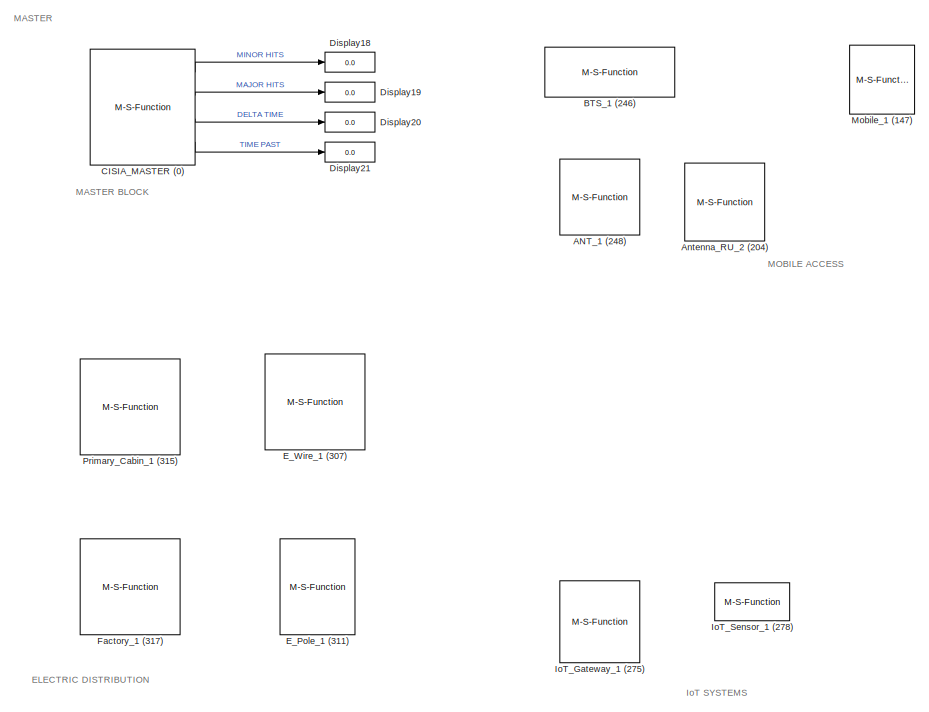
[diagram: root canvas - part 1/5, top left region]
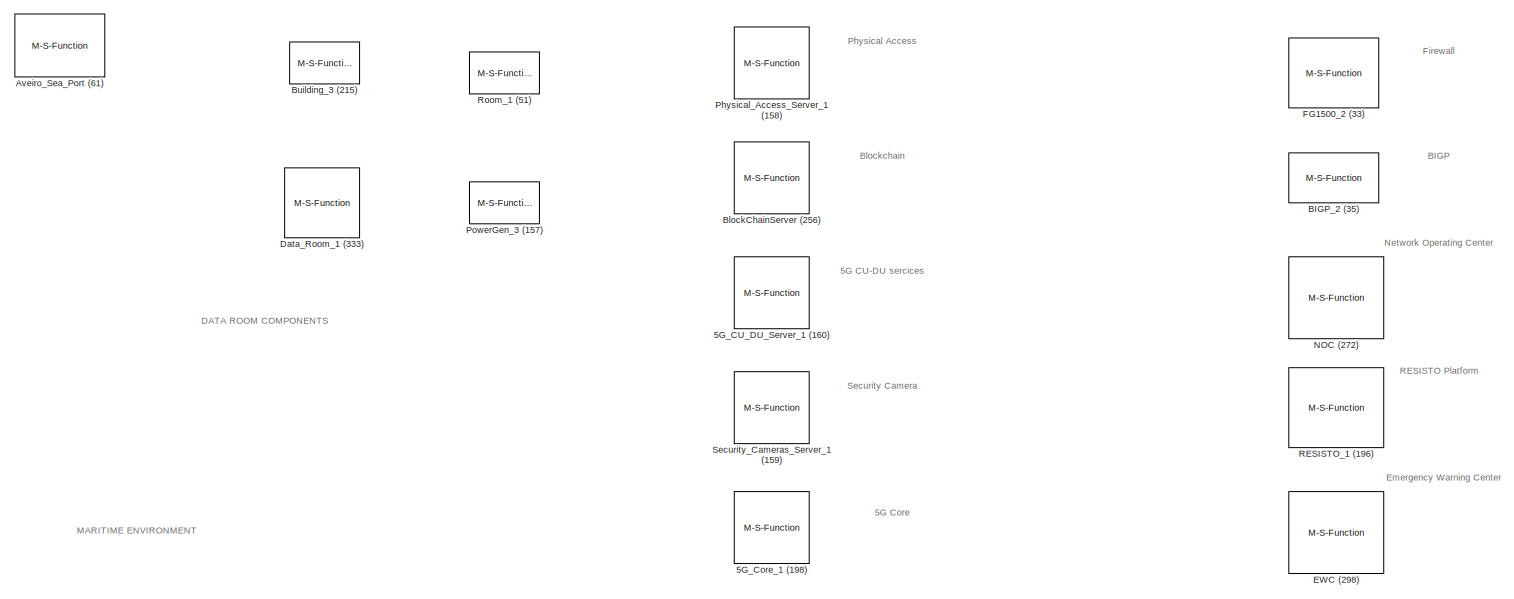
[diagram: root canvas - part 2/5, top right region]
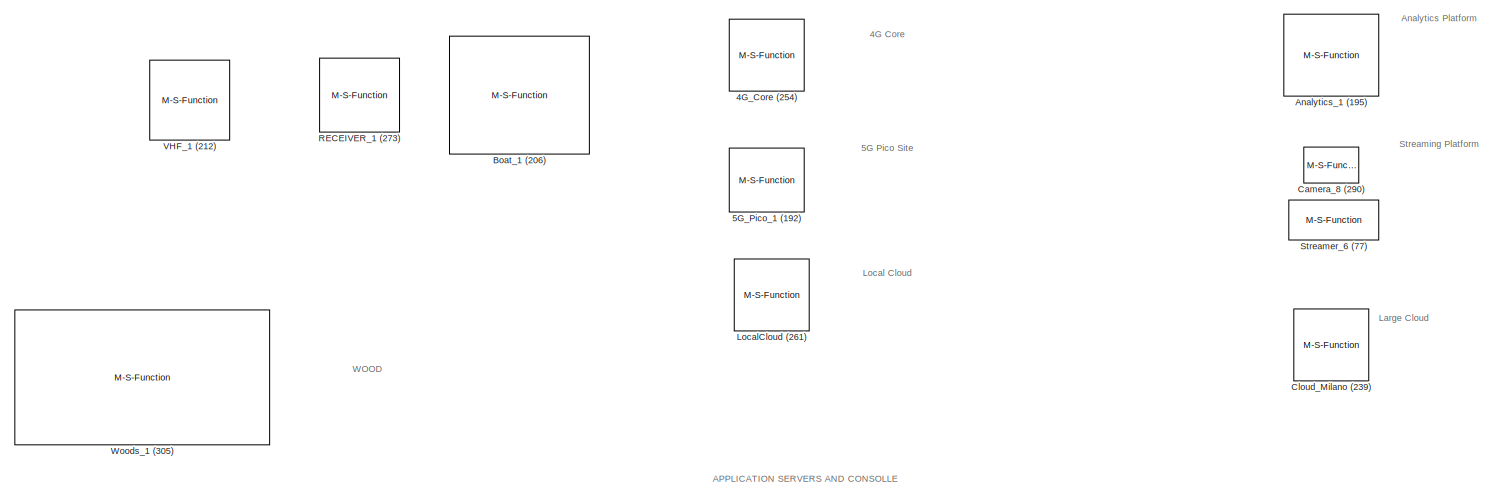
[diagram: root canvas - part 3/5, middle right region]
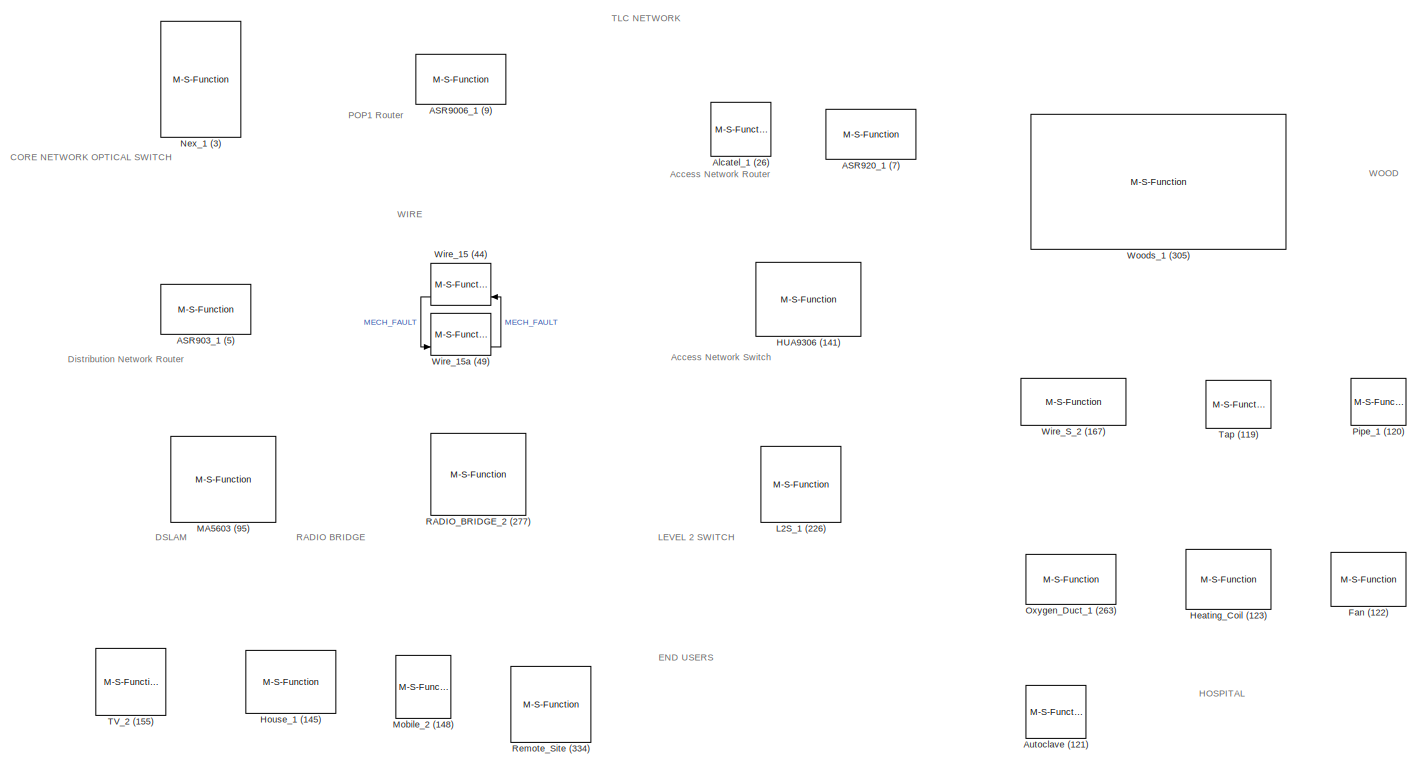
[diagram: root canvas - part 4/5, bottom left region]
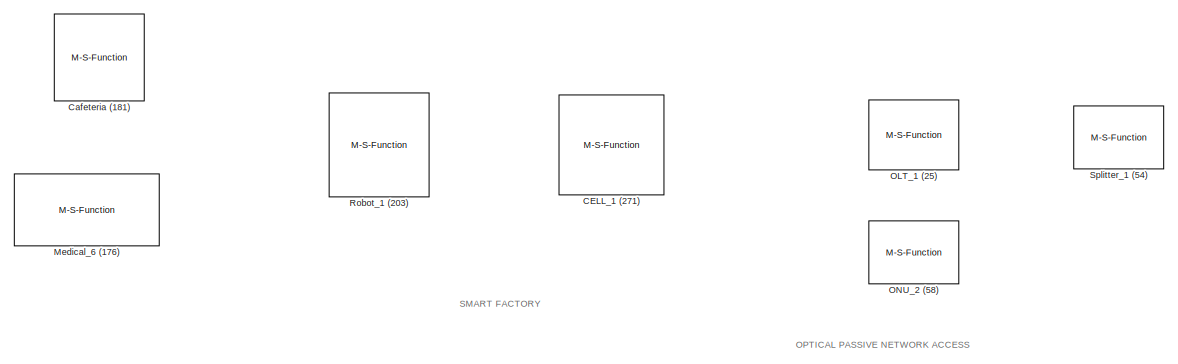
[diagram: root canvas - part 5/5, bottom right region]
MODEL slx_8f8395933482
KIND model
CONFIG AbsTol = auto
CONFIG EnableMultiTasking = off
CONFIG FixedStep = auto
CONFIG MaxStep = auto
CONFIG MinStep = auto
CONFIG RelTol = 1e-3
CONFIG SampleTimeConstraint = Unconstrained
CONFIG SolverName = VariableStepAuto
CONFIG StartTime = 0.0
CONFIG StopTime = 2
BLOCK [M-S-Function] 4G_Core (254)
  FunctionName = cisia_msfun
  Parameters = Parameter1, Parameter2, Parameter3, resources, Parameter10, codeupdate, step_received, step_computed, dynamic_computed, step_sended, id_entity, id_project, id_type, name_type, color
  Ports = [5, 3]
BLOCK [M-S-Function] 5G_CU_DU_Server_1 (160)
  FunctionName = cisia_msfun
  Parameters = Parameter1, Parameter2, Parameter3, resources, Parameter10, codeupdate, step_received, step_computed, dynamic_computed, step_sended, id_entity, id_project, id_type, name_type, color
  Ports = [5, 3]
BLOCK [M-S-Function] 5G_Core_1 (198)
  FunctionName = cisia_msfun
  Parameters = Parameter1, Parameter2, Parameter3, resources, Parameter10, codeupdate, step_received, step_computed, dynamic_computed, step_sended, id_entity, id_project, id_type, name_type, color
  Ports = [5, 3]
BLOCK [M-S-Function] 5G_Pico_1 (192)
  FunctionName = cisia_msfun
  Parameters = Parameter1, Parameter2, Parameter3, resources, Parameter10, codeupdate, step_received, step_computed, dynamic_computed, step_sended, id_entity, id_project, id_type, name_type, color
  Ports = [5, 3]
BLOCK [M-S-Function] ANT_1 (248)
  FunctionName = cisia_msfun
  Parameters = Parameter1, Parameter2, Parameter3, resources, Parameter10, codeupdate, step_received, step_computed, dynamic_computed, step_sended, id_entity, id_project, id_type, name_type, color
  Ports = [4, 3]
BLOCK [M-S-Function] ASR9006_1 (9)
  FunctionName = cisia_msfun
  Parameters = Parameter1, Parameter2, Parameter3, resources, Parameter10, codeupdate, step_received, step_computed, dynamic_computed, step_sended, id_entity, id_project, id_type, name_type, color
  Ports = [5, 4]
BLOCK [M-S-Function] ASR903_1 (5)
  FunctionName = cisia_msfun
  Parameters = Parameter1, Parameter2, Parameter3, resources, Parameter10, codeupdate, step_received, step_computed, dynamic_computed, step_sended, id_entity, id_project, id_type, name_type, color
  Ports = [5, 4]
BLOCK [M-S-Function] ASR920_1 (7)
  FunctionName = cisia_msfun
  NameLocation = top
  Parameters = Parameter1, Parameter2, Parameter3, resources, Parameter10, codeupdate, step_received, step_computed, dynamic_computed, step_sended, id_entity, id_project, id_type, name_type, color
  Ports = [5, 4]
BLOCK [M-S-Function] Alcatel_1 (26)
  FunctionName = cisia_msfun
  Parameters = Parameter1, Parameter2, Parameter3, resources, Parameter10, codeupdate, step_received, step_computed, dynamic_computed, step_sended, id_entity, id_project, id_type, name_type, color
  Ports = [5, 4]
BLOCK [M-S-Function] Analytics_1 (195)
  FunctionName = cisia_msfun
  Parameters = Parameter1, Parameter2, Parameter3, resources, Parameter10, codeupdate, step_received, step_computed, dynamic_computed, step_sended, id_entity, id_project, id_type, name_type, color
  Ports = [4, 1]
BLOCK [M-S-Function] Antenna_RU_2 (204)
  FunctionName = cisia_msfun
  Parameters = Parameter1, Parameter2, Parameter3, resources, Parameter10, codeupdate, step_received, step_computed, dynamic_computed, step_sended, id_entity, id_project, id_type, name_type, color
  Ports = [4, 3]
BLOCK [M-S-Function] Autoclave (121)
  FunctionName = cisia_msfun
  Parameters = Parameter1, Parameter2, Parameter3, resources, Parameter10, codeupdate, step_received, step_computed, dynamic_computed, step_sended, id_entity, id_project, id_type, name_type, color
  Ports = [2, 1]
BLOCK [M-S-Function] Aveiro_Sea_Port (61)
  FunctionName = cisia_msfun
  Parameters = Parameter1, Parameter2, Parameter3, resources, Parameter10, codeupdate, step_received, step_computed, dynamic_computed, step_sended, id_entity, id_project, id_type, name_type, color
  Ports = [3, 4]
BLOCK [M-S-Function] BIGP_2 (35)
  FunctionName = cisia_msfun
  Parameters = Parameter1, Parameter2, Parameter3, resources, Parameter10, codeupdate, step_received, step_computed, dynamic_computed, step_sended, id_entity, id_project, id_type, name_type, color
  Ports = [5, 3]
BLOCK [M-S-Function] BTS_1 (246)
  FunctionName = cisia_msfun
  Parameters = Parameter1, Parameter2, Parameter3, resources, Parameter10, codeupdate, step_received, step_computed, dynamic_computed, step_sended, id_entity, id_project, id_type, name_type, color
  Ports = [3, 3]
BLOCK [M-S-Function] BlockChainServer (256)
  FunctionName = cisia_msfun
  Parameters = Parameter1, Parameter2, Parameter3, resources, Parameter10, codeupdate, step_received, step_computed, dynamic_computed, step_sended, id_entity, id_project, id_type, name_type, color
  Ports = [5, 4]
BLOCK [M-S-Function] Boat_1 (206)
  FunctionName = cisia_msfun
  Parameters = Parameter1, Parameter2, Parameter3, resources, Parameter10, codeupdate, step_received, step_computed, dynamic_computed, step_sended, id_entity, id_project, id_type, name_type, color
  Ports = [2, 3]
BLOCK [M-S-Function] Building_3 (215)
  FunctionName = cisia_msfun
  Parameters = Parameter1, Parameter2, Parameter3, resources, Parameter10, codeupdate, step_received, step_computed, dynamic_computed, step_sended, id_entity, id_project, id_type, name_type, color
  Ports = [1, 2]
BLOCK [M-S-Function] CELL_1 (271)
  FunctionName = cisia_msfun
  Parameters = Parameter1, Parameter2, Parameter3, resources, Parameter10, codeupdate, step_received, step_computed, dynamic_computed, step_sended, id_entity, id_project, id_type, name_type, color
  Ports = [1, 1]
BLOCK [M-S-Function] CISIA_MASTER (0)
  FunctionName = cisia_msfun
  Parameters = Parameter1, Parameter2, Parameter3, resources, Parameter4, Parameter5, Parameter6, Parameter7, Parameter8, Parameter9
  Ports = [0, 4]
BLOCK [M-S-Function] Cafeteria (181)
  FunctionName = cisia_msfun
  Parameters = Parameter1, Parameter2, Parameter3, resources, Parameter10, codeupdate, step_received, step_computed, dynamic_computed, step_sended, id_entity, id_project, id_type, name_type, color
  Ports = [2, 1]
BLOCK [M-S-Function] Camera_8 (290)
  FunctionName = cisia_msfun
  Parameters = Parameter1, Parameter2, Parameter3, resources, Parameter10, codeupdate, step_received, step_computed, dynamic_computed, step_sended, id_entity, id_project, id_type, name_type, color
  Ports = [0, 1]
BLOCK [M-S-Function] Cloud_Milano (239)
  FunctionName = cisia_msfun
  Parameters = Parameter1, Parameter2, Parameter3, resources, Parameter10, codeupdate, step_received, step_computed, dynamic_computed, step_sended, id_entity, id_project, id_type, name_type, color
  Ports = [5, 3]
BLOCK [M-S-Function] Data_Room_1 (333)
  FunctionName = cisia_msfun
  Parameters = Parameter1, Parameter2, Parameter3, resources, Parameter10, codeupdate, step_received, step_computed, dynamic_computed, step_sended, id_entity, id_project, id_type, name_type, color
  Ports = [1, 1]
BLOCK [Display] Display18
  Decimation = 1
  Ports = [1]
BLOCK [Display] Display19
  Decimation = 1
  Ports = [1]
BLOCK [Display] Display20
  Decimation = 1
  Ports = [1]
BLOCK [Display] Display21
  Decimation = 1
  Ports = [1]
BLOCK [M-S-Function] EWC (298)
  FunctionName = cisia_msfun
  Parameters = Parameter1, Parameter2, Parameter3, resources, Parameter10, codeupdate, step_received, step_computed, dynamic_computed, step_sended, id_entity, id_project, id_type, name_type, color
  Ports = [4, 1]
BLOCK [M-S-Function] E_Pole_1 (311)
  FunctionName = cisia_msfun
  Parameters = Parameter1, Parameter2, Parameter3, resources, Parameter10, codeupdate, step_received, step_computed, dynamic_computed, step_sended, id_entity, id_project, id_type, name_type, color
  Ports = [3, 2]
BLOCK [M-S-Function] E_Wire_1 (307)
  FunctionName = cisia_msfun
  Parameters = Parameter1, Parameter2, Parameter3, resources, Parameter10, codeupdate, step_received, step_computed, dynamic_computed, step_sended, id_entity, id_project, id_type, name_type, color
  Ports = [3, 2]
BLOCK [M-S-Function] FG1500_2 (33)
  FunctionName = cisia_msfun
  Parameters = Parameter1, Parameter2, Parameter3, resources, Parameter10, codeupdate, step_received, step_computed, dynamic_computed, step_sended, id_entity, id_project, id_type, name_type, color
  Ports = [5, 5]
BLOCK [M-S-Function] Factory_1 (317)
  FunctionName = cisia_msfun
  Parameters = Parameter1, Parameter2, Parameter3, resources, Parameter10, codeupdate, step_received, step_computed, dynamic_computed, step_sended, id_entity, id_project, id_type, name_type, color
  Ports = [1, 1]
BLOCK [M-S-Function] Fan (122)
  FunctionName = cisia_msfun
  Parameters = Parameter1, Parameter2, Parameter3, resources, Parameter10, codeupdate, step_received, step_computed, dynamic_computed, step_sended, id_entity, id_project, id_type, name_type, color
  Ports = [1, 1]
BLOCK [M-S-Function] HUA9306 (141)
  FunctionName = cisia_msfun
  Parameters = Parameter1, Parameter2, Parameter3, resources, Parameter10, codeupdate, step_received, step_computed, dynamic_computed, step_sended, id_entity, id_project, id_type, name_type, color
  Ports = [5, 4]
BLOCK [M-S-Function] Heating_Coil (123)
  FunctionName = cisia_msfun
  Parameters = Parameter1, Parameter2, Parameter3, resources, Parameter10, codeupdate, step_received, step_computed, dynamic_computed, step_sended, id_entity, id_project, id_type, name_type, color
  Ports = [2, 1]
BLOCK [M-S-Function] House_1 (145)
  FunctionName = cisia_msfun
  Parameters = Parameter1, Parameter2, Parameter3, resources, Parameter10, codeupdate, step_received, step_computed, dynamic_computed, step_sended, id_entity, id_project, id_type, name_type, color
  Ports = [4, 4]
BLOCK [M-S-Function] IoT_Gateway_1 (275)
  FunctionName = cisia_msfun
  Parameters = Parameter1, Parameter2, Parameter3, resources, Parameter10, codeupdate, step_received, step_computed, dynamic_computed, step_sended, id_entity, id_project, id_type, name_type, color
  Ports = [4, 5]
BLOCK [M-S-Function] IoT_Sensor_1 (278)
  FunctionName = cisia_msfun
  Parameters = Parameter1, Parameter2, Parameter3, resources, Parameter10, codeupdate, step_received, step_computed, dynamic_computed, step_sended, id_entity, id_project, id_type, name_type, color
  Ports = [1, 1]
BLOCK [M-S-Function] L2S_1 (226)
  FunctionName = cisia_msfun
  Parameters = Parameter1, Parameter2, Parameter3, resources, Parameter10, codeupdate, step_received, step_computed, dynamic_computed, step_sended, id_entity, id_project, id_type, name_type, color
  Ports = [5, 3]
BLOCK [M-S-Function] LocalCloud (261)
  FunctionName = cisia_msfun
  Parameters = Parameter1, Parameter2, Parameter3, resources, Parameter10, codeupdate, step_received, step_computed, dynamic_computed, step_sended, id_entity, id_project, id_type, name_type, color
  Ports = [5, 3]
BLOCK [M-S-Function] MA5603 (95)
  FunctionName = cisia_msfun
  Parameters = Parameter1, Parameter2, Parameter3, resources, Parameter10, codeupdate, step_received, step_computed, dynamic_computed, step_sended, id_entity, id_project, id_type, name_type, color
  Ports = [4, 5]
BLOCK [M-S-Function] Medical_6 (176)
  FunctionName = cisia_msfun
  Parameters = Parameter1, Parameter2, Parameter3, resources, Parameter10, codeupdate, step_received, step_computed, dynamic_computed, step_sended, id_entity, id_project, id_type, name_type, color
  Ports = [8, 3]
BLOCK [M-S-Function] Mobile_1 (147)
  FunctionName = cisia_msfun
  NameLocation = top
  Parameters = Parameter1, Parameter2, Parameter3, resources, Parameter10, codeupdate, step_received, step_computed, dynamic_computed, step_sended, id_entity, id_project, id_type, name_type, color
  Ports = [3, 4]
BLOCK [M-S-Function] Mobile_2 (148)
  FunctionName = cisia_msfun
  Parameters = Parameter1, Parameter2, Parameter3, resources, Parameter10, codeupdate, step_received, step_computed, dynamic_computed, step_sended, id_entity, id_project, id_type, name_type, color
  Ports = [3, 4]
BLOCK [M-S-Function] NOC (272)
  FunctionName = cisia_msfun
  Parameters = Parameter1, Parameter2, Parameter3, resources, Parameter10, codeupdate, step_received, step_computed, dynamic_computed, step_sended, id_entity, id_project, id_type, name_type, color
  Ports = [4, 1]
BLOCK [M-S-Function] Nex_1 (3)
  FunctionName = cisia_msfun
  Parameters = Parameter1, Parameter2, Parameter3, resources, Parameter10, codeupdate, step_received, step_computed, dynamic_computed, step_sended, id_entity, id_project, id_type, name_type, color
  Ports = [5, 4]
BLOCK [M-S-Function] OLT_1 (25)
  FunctionName = cisia_msfun
  Parameters = Parameter1, Parameter2, Parameter3, resources, Parameter10, codeupdate, step_received, step_computed, dynamic_computed, step_sended, id_entity, id_project, id_type, name_type, color
  Ports = [6, 4]
BLOCK [M-S-Function] ONU_2 (58)
  FunctionName = cisia_msfun
  Parameters = Parameter1, Parameter2, Parameter3, resources, Parameter10, codeupdate, step_received, step_computed, dynamic_computed, step_sended, id_entity, id_project, id_type, name_type, color
  Ports = [4, 3]
BLOCK [M-S-Function] Oxygen_Duct_1 (263)
  FunctionName = cisia_msfun
  Parameters = Parameter1, Parameter2, Parameter3, resources, Parameter10, codeupdate, step_received, step_computed, dynamic_computed, step_sended, id_entity, id_project, id_type, name_type, color
  Ports = [1, 1]
BLOCK [M-S-Function] Physical_Access_Server_1 (158)
  FunctionName = cisia_msfun
  Parameters = Parameter1, Parameter2, Parameter3, resources, Parameter10, codeupdate, step_received, step_computed, dynamic_computed, step_sended, id_entity, id_project, id_type, name_type, color
  Ports = [5, 3]
BLOCK [M-S-Function] Pipe_1 (120)
  FunctionName = cisia_msfun
  Parameters = Parameter1, Parameter2, Parameter3, resources, Parameter10, codeupdate, step_received, step_computed, dynamic_computed, step_sended, id_entity, id_project, id_type, name_type, color
  Ports = [1, 2]
BLOCK [M-S-Function] PowerGen_3 (157)
  FunctionName = cisia_msfun
  Parameters = Parameter1, Parameter2, Parameter3, resources, Parameter10, codeupdate, step_received, step_computed, dynamic_computed, step_sended, id_entity, id_project, id_type, name_type, color
  Ports = [0, 1]
BLOCK [M-S-Function] Primary_Cabin_1 (315)
  FunctionName = cisia_msfun
  Parameters = Parameter1, Parameter2, Parameter3, resources, Parameter10, codeupdate, step_received, step_computed, dynamic_computed, step_sended, id_entity, id_project, id_type, name_type, color
  Ports = [3, 7]
BLOCK [M-S-Function] RADIO_BRIDGE_2 (277)
  FunctionName = cisia_msfun
  Parameters = Parameter1, Parameter2, Parameter3, resources, Parameter10, codeupdate, step_received, step_computed, dynamic_computed, step_sended, id_entity, id_project, id_type, name_type, color
  Ports = [3, 3]
BLOCK [M-S-Function] RECEIVER_1 (273)
  FunctionName = cisia_msfun
  Parameters = Parameter1, Parameter2, Parameter3, resources, Parameter10, codeupdate, step_received, step_computed, dynamic_computed, step_sended, id_entity, id_project, id_type, name_type, color
  Ports = [1, 1]
BLOCK [M-S-Function] RESISTO_1 (196)
  FunctionName = cisia_msfun
  Parameters = Parameter1, Parameter2, Parameter3, resources, Parameter10, codeupdate, step_received, step_computed, dynamic_computed, step_sended, id_entity, id_project, id_type, name_type, color
  Ports = [4, 1]
BLOCK [M-S-Function] Remote_Site (334)
  FunctionName = cisia_msfun
  Parameters = Parameter1, Parameter2, Parameter3, resources, Parameter10, codeupdate, step_received, step_computed, dynamic_computed, step_sended, id_entity, id_project, id_type, name_type, color
  Ports = [3, 3]
BLOCK [M-S-Function] Robot_1 (203)
  FunctionName = cisia_msfun
  Parameters = Parameter1, Parameter2, Parameter3, resources, Parameter10, codeupdate, step_received, step_computed, dynamic_computed, step_sended, id_entity, id_project, id_type, name_type, color
  Ports = [3, 3]
BLOCK [M-S-Function] Room_1 (51)
  FunctionName = cisia_msfun
  Parameters = Parameter1, Parameter2, Parameter3, resources, Parameter10, codeupdate, step_received, step_computed, dynamic_computed, step_sended, id_entity, id_project, id_type, name_type, color
  Ports = [1, 1]
BLOCK [M-S-Function] Security_Cameras_Server_1 (159)
  FunctionName = cisia_msfun
  Parameters = Parameter1, Parameter2, Parameter3, resources, Parameter10, codeupdate, step_received, step_computed, dynamic_computed, step_sended, id_entity, id_project, id_type, name_type, color
  Ports = [5, 3]
BLOCK [M-S-Function] Splitter_1 (54)
  FunctionName = cisia_msfun
  Parameters = Parameter1, Parameter2, Parameter3, resources, Parameter10, codeupdate, step_received, step_computed, dynamic_computed, step_sended, id_entity, id_project, id_type, name_type, color
  Ports = [3, 4]
BLOCK [M-S-Function] Streamer_6 (77)
  FunctionName = cisia_msfun
  Parameters = Parameter1, Parameter2, Parameter3, resources, Parameter10, codeupdate, step_received, step_computed, dynamic_computed, step_sended, id_entity, id_project, id_type, name_type, color
  Ports = [1, 3]
BLOCK [M-S-Function] TV_2 (155)
  FunctionName = cisia_msfun
  Parameters = Parameter1, Parameter2, Parameter3, resources, Parameter10, codeupdate, step_received, step_computed, dynamic_computed, step_sended, id_entity, id_project, id_type, name_type, color
  Ports = [3, 4]
BLOCK [M-S-Function] Tap (119)
  FunctionName = cisia_msfun
  Parameters = Parameter1, Parameter2, Parameter3, resources, Parameter10, codeupdate, step_received, step_computed, dynamic_computed, step_sended, id_entity, id_project, id_type, name_type, color
  Ports = [0, 1]
BLOCK [M-S-Function] VHF_1 (212)
  FunctionName = cisia_msfun
  Parameters = Parameter1, Parameter2, Parameter3, resources, Parameter10, codeupdate, step_received, step_computed, dynamic_computed, step_sended, id_entity, id_project, id_type, name_type, color
  Ports = [5, 4]
BLOCK [M-S-Function] Wire_15 (44)
  FunctionName = cisia_msfun
  NameLocation = top
  Parameters = Parameter1, Parameter2, Parameter3, resources, Parameter10, codeupdate, step_received, step_computed, dynamic_computed, step_sended, id_entity, id_project, id_type, name_type, color
  Ports = [4, 4]
BLOCK [M-S-Function] Wire_15a (49)
  FunctionName = cisia_msfun
  Parameters = Parameter1, Parameter2, Parameter3, resources, Parameter10, codeupdate, step_received, step_computed, dynamic_computed, step_sended, id_entity, id_project, id_type, name_type, color
  Ports = [4, 4]
BLOCK [M-S-Function] Wire_S_2 (167)
  FunctionName = cisia_msfun
  Parameters = Parameter1, Parameter2, Parameter3, resources, Parameter10, codeupdate, step_received, step_computed, dynamic_computed, step_sended, id_entity, id_project, id_type, name_type, color
  Ports = [1, 2]
BLOCK [M-S-Function] Woods_1 (305)
  FunctionName = cisia_msfun
  Parameters = Parameter1, Parameter2, Parameter3, resources, Parameter10, codeupdate, step_received, step_computed, dynamic_computed, step_sended, id_entity, id_project, id_type, name_type, color
  Ports = [1, 2]
ANNOTATION (root): Access Network Router
ANNOTATION (root): Access Network Switch
ANNOTATION (root): CORE NETWORK OPTICAL SWITCH
ANNOTATION (root): DSLAM
ANNOTATION (root): Distribution Network Router
ANNOTATION (root): LEVEL 2 SWITCH
ANNOTATION (root): POP1 Router
ANNOTATION (root): RADIO BRIDGE
ANNOTATION (root): WIRE
ANNOTATION (root): 4G Core
ANNOTATION (root): 5G CU-DU sercices
ANNOTATION (root): 5G Core
ANNOTATION (root): 5G Pico Site
ANNOTATION (root): APPLICATION SERVERS AND CONSOLLE
ANNOTATION (root): Analytics Platform
ANNOTATION (root): BIGP
ANNOTATION (root): Blockchain
ANNOTATION (root): DATA ROOM COMPONENTS
ANNOTATION (root): ELECTRIC DISTRIBUTION
ANNOTATION (root): END USERS
ANNOTATION (root): Emergency Warning Center
ANNOTATION (root): Firewall
ANNOTATION (root): HOSPITAL
ANNOTATION (root): IoT SYSTEMS
ANNOTATION (root): Large Cloud
ANNOTATION (root): Local Cloud
ANNOTATION (root): MARITIME ENVIRONMENT
ANNOTATION (root): MASTER BLOCK
ANNOTATION (root): MOBILE ACCESS
ANNOTATION (root): Network Operating Center
ANNOTATION (root): OPTICAL PASSIVE NETWORK ACCESS
ANNOTATION (root): Physical Access
ANNOTATION (root): RESISTO Platform
ANNOTATION (root): SMART FACTORY
ANNOTATION (root): Security Camera
ANNOTATION (root): Streaming Platform
ANNOTATION (root): TLC NETWORK
ANNOTATION (root): WOOD
ANNOTATION (root): MASTER
LINE CISIA_MASTER (0):1 -> Display18:1
LINE CISIA_MASTER (0):2 -> Display19:1
LINE CISIA_MASTER (0):3 -> Display20:1
LINE CISIA_MASTER (0):4 -> Display21:1
LINE Wire_15 (44):4 -> Wire_15a (49):4
LINE Wire_15a (49):4 -> Wire_15 (44):4
